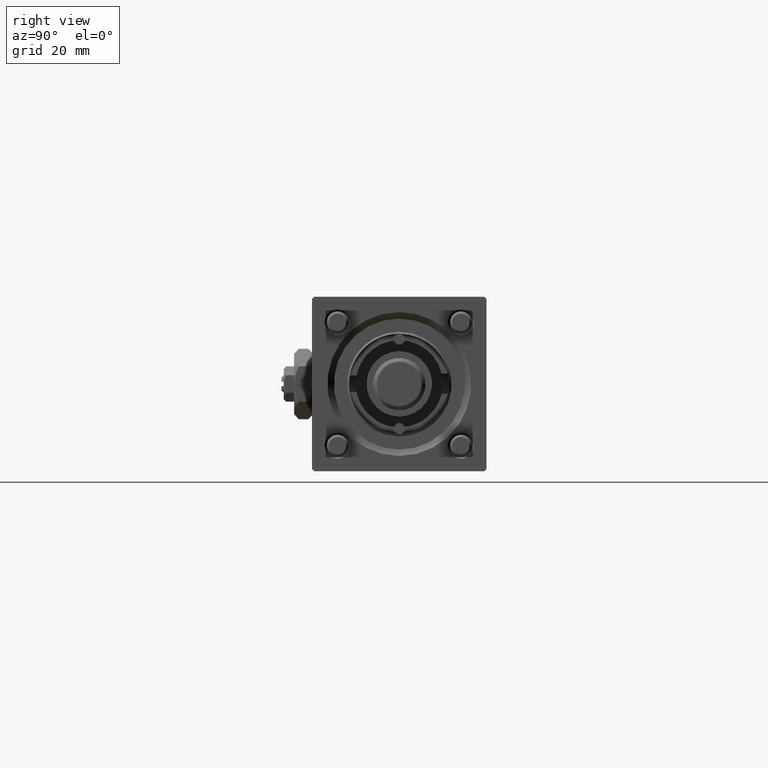
[diagram: clean part render]
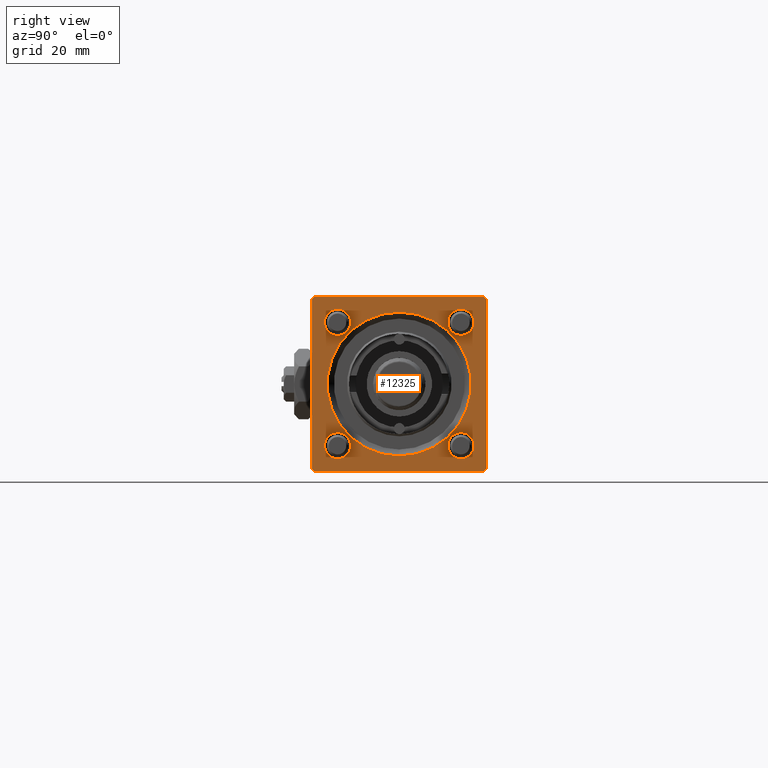
[diagram: same view with one face highlighted and labeled with its STEP entity id]
A machine part, right view. The second image highlights one B-rep face of the part: STEP entity #12325.
In plain terms, the highlighted planar face has unit normal (-1, 0, 0).
Its self-contained STEP definition (entity closure, byte-faithful):
#162 = CARTESIAN_POINT ( 'NONE',  ( 119.0000000000000142, -14.15000000000000036, -17.15000000000000568 ) ) ;
#240 = FACE_OUTER_BOUND ( 'NONE', #19289, .T. ) ;
#255 = CARTESIAN_POINT ( 'NONE',  ( 119.0000000000000142, 19.99999999999999645, -20.00000000000000000 ) ) ;
#528 = CARTESIAN_POINT ( 'NONE',  ( 119.0000000000000142, -14.15000000000000036, 14.15000000000000036 ) ) ;
#733 = CARTESIAN_POINT ( 'NONE',  ( 119.0000000000000142, -20.00000000000000355, 19.50000000000002487 ) ) ;
#1044 = CIRCLE ( 'NONE', #55412, 3.000000000000000888 ) ;
#1131 = DIRECTION ( 'NONE',  ( 0.000000000000000000, -1.000000000000000000, 0.000000000000000000 ) ) ;
#1212 = CARTESIAN_POINT ( 'NONE',  ( 119.0000000000000142, -14.15000000000000036, 11.15000000000002700 ) ) ;
#1613 = EDGE_LOOP ( 'NONE', ( #44100, #17529 ) ) ;
#1619 = ORIENTED_EDGE ( 'NONE', *, *, #55380, .T. ) ;
#2010 = CARTESIAN_POINT ( 'NONE',  ( 119.0000000000000142, 19.99999999999999645, -19.50000000000000000 ) ) ;
#2129 = VERTEX_POINT ( 'NONE', #162 ) ;
#2382 = CIRCLE ( 'NONE', #9988, 3.000000000000004441 ) ;
#2647 = CARTESIAN_POINT ( 'NONE',  ( 119.0000000000000142, 0.000000000000000000, -16.50000000000001421 ) ) ;
#4214 = CARTESIAN_POINT ( 'NONE',  ( 119.0000000000000142, 14.15000000000000036, 14.15000000000000036 ) ) ;
#4566 = CIRCLE ( 'NONE', #31295, 2.999999999999973355 ) ;
#4716 = CARTESIAN_POINT ( 'NONE',  ( 119.0000000000000142, 0.000000000000000000, 0.000000000000000000 ) ) ;
#4723 = CARTESIAN_POINT ( 'NONE',  ( 119.0000000000000142, -19.50000000000002487, -20.00000000000000000 ) ) ;
#4971 = CIRCLE ( 'NONE', #16464, 16.50000000000001421 ) ;
#5450 = DIRECTION ( 'NONE',  ( 0.000000000000000000, 8.673617379884036705E-17, -1.000000000000000000 ) ) ;
#5985 = ORIENTED_EDGE ( 'NONE', *, *, #27410, .T. ) ;
#6092 = EDGE_LOOP ( 'NONE', ( #47389, #5985 ) ) ;
#6166 = ORIENTED_EDGE ( 'NONE', *, *, #23501, .T. ) ;
#6563 = AXIS2_PLACEMENT_3D ( 'NONE', #40454, #30886, #49111 ) ;
#6783 = DIRECTION ( 'NONE',  ( 0.000000000000000000, 0.000000000000000000, 1.000000000000000000 ) ) ;
#7131 = VERTEX_POINT ( 'NONE', #2647 ) ;
#7316 = ORIENTED_EDGE ( 'NONE', *, *, #25526, .T. ) ;
#8096 = DIRECTION ( 'NONE',  ( 0.000000000000000000, 0.000000000000000000, 1.000000000000000000 ) ) ;
#9580 = VECTOR ( 'NONE', #26678, 1000.000000000000000 ) ;
#9773 = DIRECTION ( 'NONE',  ( -1.000000000000000000, -0.000000000000000000, -0.000000000000000000 ) ) ;
#9780 = DIRECTION ( 'NONE',  ( 0.000000000000000000, 0.000000000000000000, 1.000000000000000000 ) ) ;
#9988 = AXIS2_PLACEMENT_3D ( 'NONE', #43836, #57581, #44129 ) ;
#10034 = CARTESIAN_POINT ( 'NONE',  ( 119.0000000000000142, 2.020667218593134678E-15, 16.50000000000001421 ) ) ;
#10074 = DIRECTION ( 'NONE',  ( -0.000000000000000000, 0.000000000000000000, 1.000000000000000000 ) ) ;
#10090 = LINE ( 'NONE', #255, #53185 ) ;
#10789 = CARTESIAN_POINT ( 'NONE',  ( 119.0000000000000142, 14.15000000000000036, 17.15000000000000568 ) ) ;
#10968 = CARTESIAN_POINT ( 'NONE',  ( 119.0000000000000142, 14.15000000000000036, 14.15000000000000036 ) ) ;
#11453 = VERTEX_POINT ( 'NONE', #36442 ) ;
#11887 = VERTEX_POINT ( 'NONE', #33355 ) ;
#12325 = ADVANCED_FACE ( 'NONE', ( #37556, #24108, #32774, #50706, #27718, #240 ), #42326, .F. ) ;
#12576 = VECTOR ( 'NONE', #31745, 1000.000000000000114 ) ;
#12645 = ORIENTED_EDGE ( 'NONE', *, *, #47785, .T. ) ;
#13071 = VERTEX_POINT ( 'NONE', #54315 ) ;
#13294 = ORIENTED_EDGE ( 'NONE', *, *, #37109, .T. ) ;
#14560 = DIRECTION ( 'NONE',  ( -1.000000000000000000, -0.000000000000000000, -0.000000000000000000 ) ) ;
#14861 = CARTESIAN_POINT ( 'NONE',  ( 119.0000000000000142, -14.15000000000000036, 14.15000000000000036 ) ) ;
#14931 = ORIENTED_EDGE ( 'NONE', *, *, #38402, .T. ) ;
#15168 = VECTOR ( 'NONE', #31788, 999.9999999999998863 ) ;
#15191 = DIRECTION ( 'NONE',  ( 0.000000000000000000, 0.000000000000000000, 1.000000000000000000 ) ) ;
#15224 = VERTEX_POINT ( 'NONE', #41172 ) ;
#15464 = DIRECTION ( 'NONE',  ( -1.000000000000000000, -0.000000000000000000, -0.000000000000000000 ) ) ;
#15751 = AXIS2_PLACEMENT_3D ( 'NONE', #42330, #46528, #6783 ) ;
#15984 = CARTESIAN_POINT ( 'NONE',  ( 119.0000000000000142, 14.15000000000000036, 11.14999999999999858 ) ) ;
#16127 = CIRCLE ( 'NONE', #34284, 16.50000000000001421 ) ;
#16411 = VERTEX_POINT ( 'NONE', #38399 ) ;
#16464 = AXIS2_PLACEMENT_3D ( 'NONE', #47403, #9773, #19628 ) ;
#16649 = AXIS2_PLACEMENT_3D ( 'NONE', #528, #49525, #27712 ) ;
#16902 = AXIS2_PLACEMENT_3D ( 'NONE', #4214, #21566, #8096 ) ;
#17529 = ORIENTED_EDGE ( 'NONE', *, *, #48405, .T. ) ;
#18278 = VERTEX_POINT ( 'NONE', #30905 ) ;
#18608 = VECTOR ( 'NONE', #29183, 1000.000000000000000 ) ;
#19289 = EDGE_LOOP ( 'NONE', ( #13294, #6166, #26378, #31814, #42817, #12645, #43818, #1619 ) ) ;
#19614 = VECTOR ( 'NONE', #35273, 999.9999999999998863 ) ;
#19628 = DIRECTION ( 'NONE',  ( 0.000000000000000000, 0.000000000000000000, 1.000000000000000000 ) ) ;
#19633 = DIRECTION ( 'NONE',  ( -1.000000000000000000, -0.000000000000000000, -0.000000000000000000 ) ) ;
#21566 = DIRECTION ( 'NONE',  ( -1.000000000000000000, -0.000000000000000000, -0.000000000000000000 ) ) ;
#22940 = DIRECTION ( 'NONE',  ( -1.000000000000000000, 0.000000000000000000, -0.000000000000000000 ) ) ;
#23139 = DIRECTION ( 'NONE',  ( -0.000000000000000000, -0.7071067811865573427, -0.7071067811865376918 ) ) ;
#23501 = EDGE_CURVE ( 'NONE', #15224, #37589, #39764, .T. ) ;
#24062 = ORIENTED_EDGE ( 'NONE', *, *, #37246, .T. ) ;
#24108 = FACE_BOUND ( 'NONE', #6092, .T. ) ;
#24717 = CARTESIAN_POINT ( 'NONE',  ( 119.0000000000000142, -14.15000000000000036, -14.15000000000000036 ) ) ;
#25526 = EDGE_CURVE ( 'NONE', #11887, #44573, #30001, .T. ) ;
#26137 = VERTEX_POINT ( 'NONE', #57646 ) ;
#26292 = EDGE_CURVE ( 'NONE', #26137, #16411, #39593, .T. ) ;
#26358 = EDGE_CURVE ( 'NONE', #11453, #18278, #43234, .T. ) ;
#26378 = ORIENTED_EDGE ( 'NONE', *, *, #38361, .F. ) ;
#26678 = DIRECTION ( 'NONE',  ( 0.000000000000000000, 0.000000000000000000, -1.000000000000000000 ) ) ;
#27333 = LINE ( 'NONE', #733, #34488 ) ;
#27410 = EDGE_CURVE ( 'NONE', #16411, #26137, #2382, .T. ) ;
#27712 = DIRECTION ( 'NONE',  ( 0.000000000000000000, 0.000000000000000000, 1.000000000000000000 ) ) ;
#27718 = FACE_BOUND ( 'NONE', #1613, .T. ) ;
#28429 = CARTESIAN_POINT ( 'NONE',  ( 119.0000000000000142, -20.00000000000000355, 19.50000000000002487 ) ) ;
#29183 = DIRECTION ( 'NONE',  ( 0.000000000000000000, -1.000000000000000000, -8.673617379884035472E-17 ) ) ;
#30001 = CIRCLE ( 'NONE', #16649, 2.999999999999973355 ) ;
#30886 = DIRECTION ( 'NONE',  ( -1.000000000000000000, -0.000000000000000000, -0.000000000000000000 ) ) ;
#30905 = CARTESIAN_POINT ( 'NONE',  ( 119.0000000000000142, -19.50000000000001776, 19.99999999999999645 ) ) ;
#31199 = CARTESIAN_POINT ( 'NONE',  ( 119.0000000000000142, 19.49999999999996803, 20.00000000000000000 ) ) ;
#31295 = AXIS2_PLACEMENT_3D ( 'NONE', #14861, #14560, #9780 ) ;
#31745 = DIRECTION ( 'NONE',  ( -0.000000000000000000, 0.7071067811865474617, 0.7071067811865474617 ) ) ;
#31788 = DIRECTION ( 'NONE',  ( 0.000000000000000000, -0.7071067811865574537, 0.7071067811865376918 ) ) ;
#31814 = ORIENTED_EDGE ( 'NONE', *, *, #56620, .T. ) ;
#32321 = CIRCLE ( 'NONE', #6563, 3.000000000000004441 ) ;
#32331 = CARTESIAN_POINT ( 'NONE',  ( 119.0000000000000142, 19.99999999999999645, -19.50000000000000000 ) ) ;
#32531 = DIRECTION ( 'NONE',  ( -1.000000000000000000, -0.000000000000000000, -0.000000000000000000 ) ) ;
#32774 = FACE_BOUND ( 'NONE', #35638, .T. ) ;
#32978 = VERTEX_POINT ( 'NONE', #41721 ) ;
#33284 = VERTEX_POINT ( 'NONE', #10789 ) ;
#33355 = CARTESIAN_POINT ( 'NONE',  ( 119.0000000000000142, -14.15000000000000036, 17.14999999999997726 ) ) ;
#33477 = CARTESIAN_POINT ( 'NONE',  ( 119.0000000000000142, -14.15000000000000036, -11.14999999999999680 ) ) ;
#34081 = VECTOR ( 'NONE', #5450, 1000.000000000000000 ) ;
#34284 = AXIS2_PLACEMENT_3D ( 'NONE', #47155, #32531, #15191 ) ;
#34488 = VECTOR ( 'NONE', #23139, 1000.000000000000114 ) ;
#34599 = EDGE_LOOP ( 'NONE', ( #40483, #14931 ) ) ;
#35273 = DIRECTION ( 'NONE',  ( 0.000000000000000000, 0.7071067811865376918, -0.7071067811865574537 ) ) ;
#35638 = EDGE_LOOP ( 'NONE', ( #24062, #39960 ) ) ;
#35651 = VERTEX_POINT ( 'NONE', #33477 ) ;
#36272 = LINE ( 'NONE', #31199, #15168 ) ;
#36442 = CARTESIAN_POINT ( 'NONE',  ( 119.0000000000000142, 19.49999999999996803, 20.00000000000000000 ) ) ;
#37109 = EDGE_CURVE ( 'NONE', #41365, #15224, #46383, .T. ) ;
#37246 = EDGE_CURVE ( 'NONE', #54384, #33284, #49334, .T. ) ;
#37556 = FACE_BOUND ( 'NONE', #34599, .T. ) ;
#37589 = VERTEX_POINT ( 'NONE', #4723 ) ;
#37656 = EDGE_LOOP ( 'NONE', ( #40121, #7316 ) ) ;
#38361 = EDGE_CURVE ( 'NONE', #32978, #37589, #10090, .T. ) ;
#38399 = CARTESIAN_POINT ( 'NONE',  ( 119.0000000000000142, 14.15000000000000036, -11.14999999999999680 ) ) ;
#38402 = EDGE_CURVE ( 'NONE', #35651, #2129, #47467, .T. ) ;
#38774 = DIRECTION ( 'NONE',  ( 0.000000000000000000, 0.000000000000000000, 1.000000000000000000 ) ) ;
#39593 = CIRCLE ( 'NONE', #15751, 3.000000000000004441 ) ;
#39764 = LINE ( 'NONE', #57993, #19614 ) ;
#39839 = CARTESIAN_POINT ( 'NONE',  ( 119.0000000000000142, 19.99999999999999645, 20.00000000000000000 ) ) ;
#39960 = ORIENTED_EDGE ( 'NONE', *, *, #53293, .T. ) ;
#40121 = ORIENTED_EDGE ( 'NONE', *, *, #40890, .T. ) ;
#40131 = LINE ( 'NONE', #39839, #9580 ) ;
#40392 = AXIS2_PLACEMENT_3D ( 'NONE', #4716, #22940, #10074 ) ;
#40454 = CARTESIAN_POINT ( 'NONE',  ( 119.0000000000000142, -14.15000000000000036, -14.15000000000000036 ) ) ;
#40483 = ORIENTED_EDGE ( 'NONE', *, *, #43357, .T. ) ;
#40720 = LINE ( 'NONE', #32331, #12576 ) ;
#40890 = EDGE_CURVE ( 'NONE', #44573, #11887, #4566, .T. ) ;
#41007 = VERTEX_POINT ( 'NONE', #2010 ) ;
#41172 = CARTESIAN_POINT ( 'NONE',  ( 119.0000000000000142, -20.00000000000000000, -19.50000000000001066 ) ) ;
#41365 = VERTEX_POINT ( 'NONE', #28429 ) ;
#41721 = CARTESIAN_POINT ( 'NONE',  ( 119.0000000000000142, 19.49999999999999645, -20.00000000000000000 ) ) ;
#42326 = PLANE ( 'NONE',  #40392 ) ;
#42330 = CARTESIAN_POINT ( 'NONE',  ( 119.0000000000000142, 14.15000000000000036, -14.15000000000000036 ) ) ;
#42817 = ORIENTED_EDGE ( 'NONE', *, *, #52567, .F. ) ;
#43234 = LINE ( 'NONE', #51586, #18608 ) ;
#43357 = EDGE_CURVE ( 'NONE', #2129, #35651, #32321, .T. ) ;
#43818 = ORIENTED_EDGE ( 'NONE', *, *, #26358, .T. ) ;
#43836 = CARTESIAN_POINT ( 'NONE',  ( 119.0000000000000142, 14.15000000000000036, -14.15000000000000036 ) ) ;
#43995 = VERTEX_POINT ( 'NONE', #10034 ) ;
#44100 = ORIENTED_EDGE ( 'NONE', *, *, #57259, .T. ) ;
#44129 = DIRECTION ( 'NONE',  ( 0.000000000000000000, 0.000000000000000000, 1.000000000000000000 ) ) ;
#44573 = VERTEX_POINT ( 'NONE', #1212 ) ;
#45555 = AXIS2_PLACEMENT_3D ( 'NONE', #24717, #15464, #38774 ) ;
#46383 = LINE ( 'NONE', #47263, #34081 ) ;
#46528 = DIRECTION ( 'NONE',  ( -1.000000000000000000, -0.000000000000000000, -0.000000000000000000 ) ) ;
#47155 = CARTESIAN_POINT ( 'NONE',  ( 119.0000000000000142, 0.000000000000000000, 0.000000000000000000 ) ) ;
#47263 = CARTESIAN_POINT ( 'NONE',  ( 119.0000000000000142, -20.00000000000000355, 19.99999999999999645 ) ) ;
#47389 = ORIENTED_EDGE ( 'NONE', *, *, #26292, .T. ) ;
#47403 = CARTESIAN_POINT ( 'NONE',  ( 119.0000000000000142, 0.000000000000000000, 0.000000000000000000 ) ) ;
#47467 = CIRCLE ( 'NONE', #45555, 3.000000000000004441 ) ;
#47785 = EDGE_CURVE ( 'NONE', #13071, #11453, #36272, .T. ) ;
#48405 = EDGE_CURVE ( 'NONE', #43995, #7131, #16127, .T. ) ;
#49111 = DIRECTION ( 'NONE',  ( 0.000000000000000000, 0.000000000000000000, 1.000000000000000000 ) ) ;
#49334 = CIRCLE ( 'NONE', #16902, 3.000000000000000888 ) ;
#49525 = DIRECTION ( 'NONE',  ( -1.000000000000000000, -0.000000000000000000, -0.000000000000000000 ) ) ;
#50706 = FACE_BOUND ( 'NONE', #37656, .T. ) ;
#51586 = CARTESIAN_POINT ( 'NONE',  ( 119.0000000000000142, 19.99999999999999645, 20.00000000000000000 ) ) ;
#52182 = DIRECTION ( 'NONE',  ( 0.000000000000000000, 0.000000000000000000, 1.000000000000000000 ) ) ;
#52567 = EDGE_CURVE ( 'NONE', #13071, #41007, #40131, .T. ) ;
#53185 = VECTOR ( 'NONE', #1131, 1000.000000000000000 ) ;
#53293 = EDGE_CURVE ( 'NONE', #33284, #54384, #1044, .T. ) ;
#54315 = CARTESIAN_POINT ( 'NONE',  ( 119.0000000000000142, 19.99999999999999645, 19.49999999999998579 ) ) ;
#54384 = VERTEX_POINT ( 'NONE', #15984 ) ;
#55380 = EDGE_CURVE ( 'NONE', #18278, #41365, #27333, .T. ) ;
#55412 = AXIS2_PLACEMENT_3D ( 'NONE', #10968, #19633, #52182 ) ;
#56620 = EDGE_CURVE ( 'NONE', #32978, #41007, #40720, .T. ) ;
#57259 = EDGE_CURVE ( 'NONE', #7131, #43995, #4971, .T. ) ;
#57581 = DIRECTION ( 'NONE',  ( -1.000000000000000000, -0.000000000000000000, -0.000000000000000000 ) ) ;
#57646 = CARTESIAN_POINT ( 'NONE',  ( 119.0000000000000142, 14.15000000000000036, -17.15000000000000568 ) ) ;
#57993 = CARTESIAN_POINT ( 'NONE',  ( 119.0000000000000142, -19.50000000000002487, -20.00000000000000000 ) ) ;